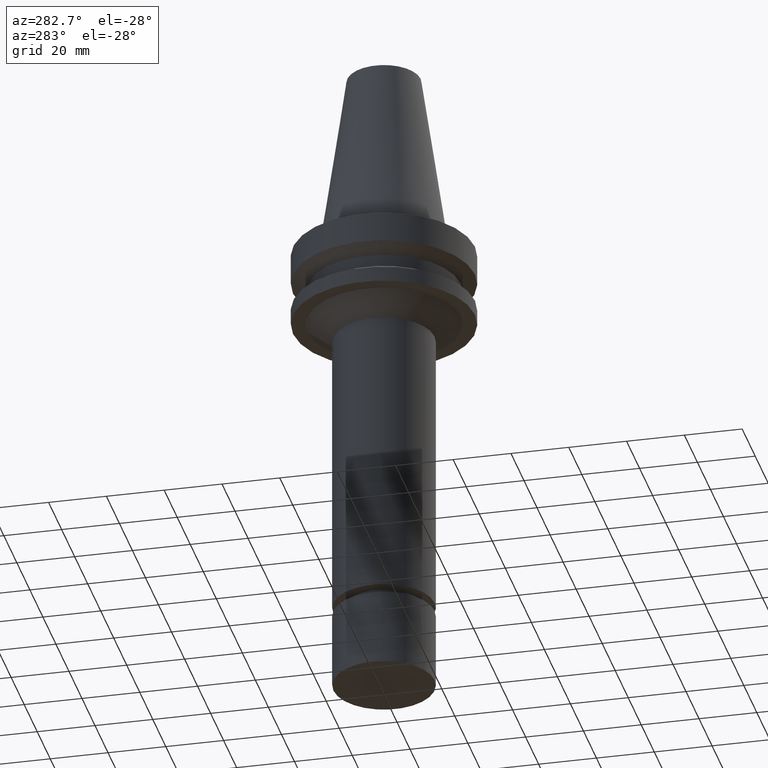
[diagram: clean part render]
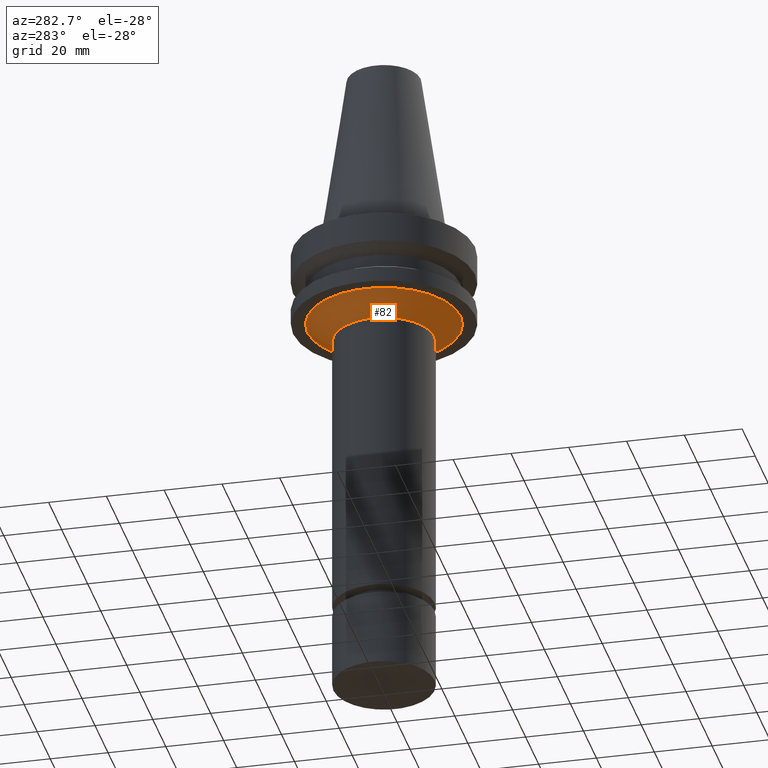
[diagram: same view with one face highlighted and labeled with its STEP entity id]
A machine part, auxiliary view. The second image highlights one B-rep face of the part: STEP entity #82.
In plain terms, the highlighted conical surface has half-angle 53.615 deg.
Its self-contained STEP definition (entity closure, byte-faithful):
#82=ADVANCED_FACE('Unnamed[1]',(#211,#212),#213,.T.);
#84=EDGE_CURVE('Unnamed[1]',#215,#215,#216,.T.);
#161=EDGE_CURVE('Unnamed[1]',#333,#333,#334,.T.);
#211=FACE_BOUND('',#389,.T.);
#212=FACE_BOUND('',#390,.T.);
#213=CONICAL_SURFACE('',#391,22.0222908518337,0.935754396976013);
#215=VERTEX_POINT('',#394);
#216=CIRCLE('',#395,26.5445817036666);
#333=VERTEX_POINT('',#542);
#334=CIRCLE('',#543,17.5000000000009);
#389=EDGE_LOOP('',(#592));
#390=EDGE_LOOP('',(#593));
#391=AXIS2_PLACEMENT_3D('',#594,#595,#596);
#394=CARTESIAN_POINT('',(1.65327317884891E-015,26.5445817036666,-26.9999999999998));
#395=AXIS2_PLACEMENT_3D('',#597,#598,#599);
#542=CARTESIAN_POINT('',(2.0613647219023E-015,17.5000000000009,-33.6646406676195));
#543=AXIS2_PLACEMENT_3D('',#727,#728,#729);
#592=ORIENTED_EDGE('',*,*,#161,.F.);
#593=ORIENTED_EDGE('',*,*,#84,.T.);
#594=CARTESIAN_POINT('',(1.85731895037561E-015,7.07580186400372E-014,-30.3323203338096));
#595=DIRECTION('',(-6.12323399573677E-017,6.62687154769284E-017,1.0));
#596=DIRECTION('',(-7.69364216147667E-034,1.0,-6.62687154769285E-017));
#597=CARTESIAN_POINT('',(1.65327317884891E-015,7.09788472281164E-014,-26.9999999999998));
#598=DIRECTION('',(6.12323399573676E-017,-6.62687154769284E-017,-1.0));
#599=DIRECTION('',(-7.69364216147668E-034,1.0,-6.62687154769284E-017));
#727=CARTESIAN_POINT('',(2.0613647219023E-015,7.0537190051958E-014,-33.6646406676195));
#728=DIRECTION('',(6.12323399573677E-017,-6.62687154769285E-017,-1.0));
#729=DIRECTION('',(-7.69364216147668E-034,1.0,-6.62687154769285E-017));